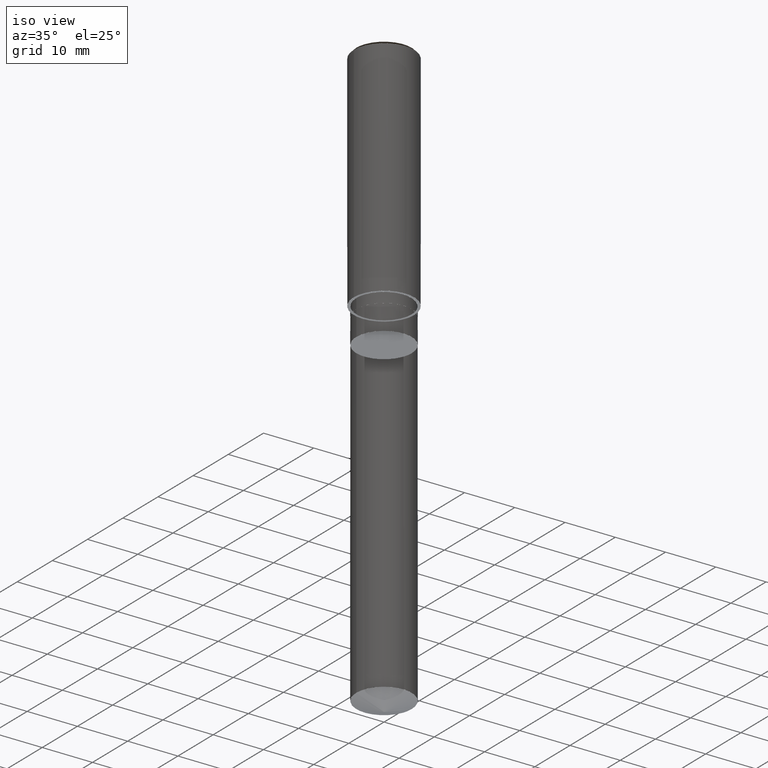
[diagram: clean part render]
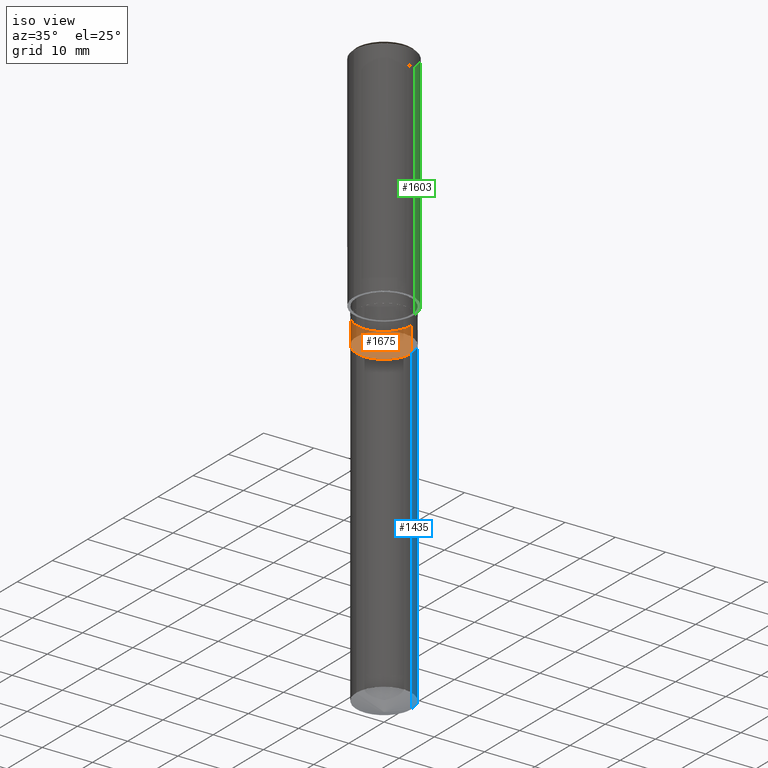
[diagram: same view with three faces highlighted in distinct colors, each labeled with its STEP entity id]
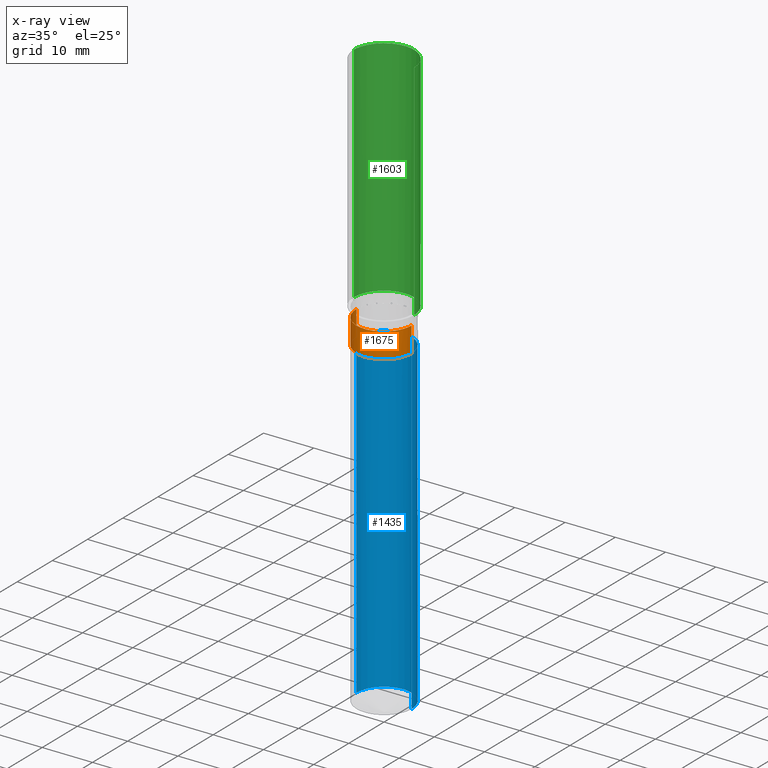
[diagram: x-ray of the same camera — body ghosted, the three highlighted faces saturated]
A machine part, iso view with three faces highlighted in distinct colors.
The next image is the same camera in x-ray (body ghosted, the three faces saturated) — at least one of them is partly hidden behind the body in this view.
Their STEP definitions:

[orange] entity #1675 — the highlighted face is a freeform B-spline surface patch.
#1342=CARTESIAN_POINT('',(5.5,0.0,-7.0));
#1346=CARTESIAN_POINT('',(-5.5,0.0,-7.0));
#1351=CARTESIAN_POINT('',(-5.5,-5.5,-7.0));
#1352=CARTESIAN_POINT('',(0.0,-5.5,-7.0));
#1353=CARTESIAN_POINT('',(5.5,-5.5,-7.0));
#1354=CARTESIAN_POINT('',(5.5,0.0,-2.0));
#1358=CARTESIAN_POINT('',(-5.5,0.0,-2.0));
#1380=CARTESIAN_POINT('',(-5.5,-5.5,-2.0));
#1381=CARTESIAN_POINT('',(0.0,-5.5,-2.0));
#1382=CARTESIAN_POINT('',(5.5,-5.5,-2.0));
#1656=(
BOUNDED_SURFACE()
B_SPLINE_SURFACE(1,2,(
(#1346,#1351,#1352,#1353,#1342),
(#1358,#1380,#1381,#1382,#1354)
), .UNSPECIFIED.,.F.,.F.,.F.)
B_SPLINE_SURFACE_WITH_KNOTS((2,2),(3,2,3),(
0.0,1.0),(
0.0,0.5,1.0), .UNSPECIFIED.)
GEOMETRIC_REPRESENTATION_ITEM()
RATIONAL_B_SPLINE_SURFACE(((1.0,0.707106781187,1.0,0.707106781187,1.0),
(1.0,0.707106781187,1.0,0.707106781187,1.0)
))
REPRESENTATION_ITEM('')
SURFACE()
);
#1657=(
BOUNDED_CURVE()
B_SPLINE_CURVE(2,(#1342,#1353,#1352,#1351,#1346),.UNSPECIFIED.,.F.,.F.)
B_SPLINE_CURVE_WITH_KNOTS((3,2,3),
(0.0,0.5,1.0),.UNSPECIFIED.)
CURVE()
GEOMETRIC_REPRESENTATION_ITEM()
RATIONAL_B_SPLINE_CURVE((1.0,0.707106781187,1.0,0.707106781187,1.0))
REPRESENTATION_ITEM('')
);
#1658=(
BOUNDED_CURVE()
B_SPLINE_CURVE(1,(#1346,#1358),.UNSPECIFIED.,.F.,.F.)
B_SPLINE_CURVE_WITH_KNOTS((2,2),
(0.0,1.0),.UNSPECIFIED.)
CURVE()
GEOMETRIC_REPRESENTATION_ITEM()
RATIONAL_B_SPLINE_CURVE((1.0,1.0))
REPRESENTATION_ITEM('')
);
#1659=(
BOUNDED_CURVE()
B_SPLINE_CURVE(2,(#1358,#1380,#1381,#1382,#1354),.UNSPECIFIED.,.F.,.F.)
B_SPLINE_CURVE_WITH_KNOTS((3,2,3),
(0.0,0.5,1.0),.UNSPECIFIED.)
CURVE()
GEOMETRIC_REPRESENTATION_ITEM()
RATIONAL_B_SPLINE_CURVE((1.0,0.707106781187,1.0,0.707106781187,1.0))
REPRESENTATION_ITEM('')
);
#1660=(
BOUNDED_CURVE()
B_SPLINE_CURVE(1,(#1354,#1342),.UNSPECIFIED.,.F.,.F.)
B_SPLINE_CURVE_WITH_KNOTS((2,2),
(0.0,1.0),.UNSPECIFIED.)
CURVE()
GEOMETRIC_REPRESENTATION_ITEM()
RATIONAL_B_SPLINE_CURVE((1.0,1.0))
REPRESENTATION_ITEM('')
);
#1661=VERTEX_POINT('',#1342);
#1662=VERTEX_POINT('',#1346);
#1663=VERTEX_POINT('',#1354);
#1664=VERTEX_POINT('',#1358);
#1665=EDGE_CURVE('',#1661,#1662,#1657,.T.);
#1666=EDGE_CURVE('',#1662,#1664,#1658,.T.);
#1667=EDGE_CURVE('',#1664,#1663,#1659,.T.);
#1668=EDGE_CURVE('',#1663,#1661,#1660,.T.);
#1669=ORIENTED_EDGE('',*,*,#1665,.T.);
#1670=ORIENTED_EDGE('',*,*,#1666,.T.);
#1671=ORIENTED_EDGE('',*,*,#1667,.T.);
#1672=ORIENTED_EDGE('',*,*,#1668,.T.);
#1673=EDGE_LOOP('',(#1669,#1670,#1671,#1672));
#1674=FACE_OUTER_BOUND('',#1673,.T.);
#1675=ADVANCED_FACE('',(#1674),#1656,.T.);

[blue] entity #1435 — the highlighted face is a freeform B-spline surface patch.
#1337=CARTESIAN_POINT('',(5.5,0.0,-70.998163711536));
#1338=CARTESIAN_POINT('',(5.5,5.5,-70.998163711536));
#1339=CARTESIAN_POINT('',(0.0,5.5,-70.998163711536));
#1340=CARTESIAN_POINT('',(-5.5,5.5,-70.998163711536));
#1341=CARTESIAN_POINT('',(-5.5,0.0,-70.998163711536));
#1342=CARTESIAN_POINT('',(5.5,0.0,-7.0));
#1343=CARTESIAN_POINT('',(5.5,5.5,-7.0));
#1344=CARTESIAN_POINT('',(0.0,5.5,-7.0));
#1345=CARTESIAN_POINT('',(-5.5,5.5,-7.0));
#1346=CARTESIAN_POINT('',(-5.5,0.0,-7.0));
#1416=(
BOUNDED_SURFACE()
B_SPLINE_SURFACE(1,2,(
(#1337,#1338,#1339,#1340,#1341),
(#1342,#1343,#1344,#1345,#1346)
), .UNSPECIFIED.,.F.,.F.,.F.)
B_SPLINE_SURFACE_WITH_KNOTS((2,2),(3,2,3),(
0.0,1.0),(
0.0,0.5,1.0), .UNSPECIFIED.)
GEOMETRIC_REPRESENTATION_ITEM()
RATIONAL_B_SPLINE_SURFACE(((1.0,0.707106781187,1.0,0.707106781187,1.0),
(1.0,0.707106781187,1.0,0.707106781187,1.0)
))
REPRESENTATION_ITEM('')
SURFACE()
);
#1417=(
BOUNDED_CURVE()
B_SPLINE_CURVE(2,(#1341,#1340,#1339,#1338,#1337),.UNSPECIFIED.,.F.,.F.)
B_SPLINE_CURVE_WITH_KNOTS((3,2,3),
(0.0,0.5,1.0),.UNSPECIFIED.)
CURVE()
GEOMETRIC_REPRESENTATION_ITEM()
RATIONAL_B_SPLINE_CURVE((1.0,0.707106781187,1.0,0.707106781187,1.0))
REPRESENTATION_ITEM('')
);
#1418=(
BOUNDED_CURVE()
B_SPLINE_CURVE(1,(#1337,#1342),.UNSPECIFIED.,.F.,.F.)
B_SPLINE_CURVE_WITH_KNOTS((2,2),
(0.0,1.0),.UNSPECIFIED.)
CURVE()
GEOMETRIC_REPRESENTATION_ITEM()
RATIONAL_B_SPLINE_CURVE((1.0,1.0))
REPRESENTATION_ITEM('')
);
#1419=(
BOUNDED_CURVE()
B_SPLINE_CURVE(2,(#1342,#1343,#1344,#1345,#1346),.UNSPECIFIED.,.F.,.F.)
B_SPLINE_CURVE_WITH_KNOTS((3,2,3),
(0.0,0.5,1.0),.UNSPECIFIED.)
CURVE()
GEOMETRIC_REPRESENTATION_ITEM()
RATIONAL_B_SPLINE_CURVE((1.0,0.707106781187,1.0,0.707106781187,1.0))
REPRESENTATION_ITEM('')
);
#1420=(
BOUNDED_CURVE()
B_SPLINE_CURVE(1,(#1346,#1341),.UNSPECIFIED.,.F.,.F.)
B_SPLINE_CURVE_WITH_KNOTS((2,2),
(0.0,1.0),.UNSPECIFIED.)
CURVE()
GEOMETRIC_REPRESENTATION_ITEM()
RATIONAL_B_SPLINE_CURVE((1.0,1.0))
REPRESENTATION_ITEM('')
);
#1421=VERTEX_POINT('',#1337);
#1422=VERTEX_POINT('',#1341);
#1423=VERTEX_POINT('',#1342);
#1424=VERTEX_POINT('',#1346);
#1425=EDGE_CURVE('',#1422,#1421,#1417,.T.);
#1426=EDGE_CURVE('',#1421,#1423,#1418,.T.);
#1427=EDGE_CURVE('',#1423,#1424,#1419,.T.);
#1428=EDGE_CURVE('',#1424,#1422,#1420,.T.);
#1429=ORIENTED_EDGE('',*,*,#1425,.T.);
#1430=ORIENTED_EDGE('',*,*,#1426,.T.);
#1431=ORIENTED_EDGE('',*,*,#1427,.T.);
#1432=ORIENTED_EDGE('',*,*,#1428,.T.);
#1433=EDGE_LOOP('',(#1429,#1430,#1431,#1432));
#1434=FACE_OUTER_BOUND('',#1433,.T.);
#1435=ADVANCED_FACE('',(#1434),#1416,.T.);

[green] entity #1603 — the highlighted face is a freeform B-spline surface patch.
#1364=CARTESIAN_POINT('',(6.0,0.0,0.0));
#1365=CARTESIAN_POINT('',(6.0,6.0,0.0));
#1366=CARTESIAN_POINT('',(0.0,6.0,0.0));
#1367=CARTESIAN_POINT('',(-6.0,6.0,0.0));
#1368=CARTESIAN_POINT('',(-6.0,0.0,0.0));
#1369=CARTESIAN_POINT('',(6.0,0.0,44.5));
#1370=CARTESIAN_POINT('',(6.0,6.0,44.5));
#1371=CARTESIAN_POINT('',(0.0,6.0,44.5));
#1372=CARTESIAN_POINT('',(-6.0,6.0,44.5));
#1373=CARTESIAN_POINT('',(-6.0,0.0,44.5));
#1584=(
BOUNDED_SURFACE()
B_SPLINE_SURFACE(1,2,(
(#1364,#1365,#1366,#1367,#1368),
(#1369,#1370,#1371,#1372,#1373)
), .UNSPECIFIED.,.F.,.F.,.F.)
B_SPLINE_SURFACE_WITH_KNOTS((2,2),(3,2,3),(
0.0,1.0),(
0.0,0.5,1.0), .UNSPECIFIED.)
GEOMETRIC_REPRESENTATION_ITEM()
RATIONAL_B_SPLINE_SURFACE(((1.0,0.707106781187,1.0,0.707106781187,1.0),
(1.0,0.707106781187,1.0,0.707106781187,1.0)
))
REPRESENTATION_ITEM('')
SURFACE()
);
#1585=(
BOUNDED_CURVE()
B_SPLINE_CURVE(2,(#1368,#1367,#1366,#1365,#1364),.UNSPECIFIED.,.F.,.F.)
B_SPLINE_CURVE_WITH_KNOTS((3,2,3),
(0.0,0.5,1.0),.UNSPECIFIED.)
CURVE()
GEOMETRIC_REPRESENTATION_ITEM()
RATIONAL_B_SPLINE_CURVE((1.0,0.707106781187,1.0,0.707106781187,1.0))
REPRESENTATION_ITEM('')
);
#1586=(
BOUNDED_CURVE()
B_SPLINE_CURVE(1,(#1364,#1369),.UNSPECIFIED.,.F.,.F.)
B_SPLINE_CURVE_WITH_KNOTS((2,2),
(0.0,1.0),.UNSPECIFIED.)
CURVE()
GEOMETRIC_REPRESENTATION_ITEM()
RATIONAL_B_SPLINE_CURVE((1.0,1.0))
REPRESENTATION_ITEM('')
);
#1587=(
BOUNDED_CURVE()
B_SPLINE_CURVE(2,(#1369,#1370,#1371,#1372,#1373),.UNSPECIFIED.,.F.,.F.)
B_SPLINE_CURVE_WITH_KNOTS((3,2,3),
(0.0,0.5,1.0),.UNSPECIFIED.)
CURVE()
GEOMETRIC_REPRESENTATION_ITEM()
RATIONAL_B_SPLINE_CURVE((1.0,0.707106781187,1.0,0.707106781187,1.0))
REPRESENTATION_ITEM('')
);
#1588=(
BOUNDED_CURVE()
B_SPLINE_CURVE(1,(#1373,#1368),.UNSPECIFIED.,.F.,.F.)
B_SPLINE_CURVE_WITH_KNOTS((2,2),
(0.0,1.0),.UNSPECIFIED.)
CURVE()
GEOMETRIC_REPRESENTATION_ITEM()
RATIONAL_B_SPLINE_CURVE((1.0,1.0))
REPRESENTATION_ITEM('')
);
#1589=VERTEX_POINT('',#1364);
#1590=VERTEX_POINT('',#1368);
#1591=VERTEX_POINT('',#1369);
#1592=VERTEX_POINT('',#1373);
#1593=EDGE_CURVE('',#1590,#1589,#1585,.T.);
#1594=EDGE_CURVE('',#1589,#1591,#1586,.T.);
#1595=EDGE_CURVE('',#1591,#1592,#1587,.T.);
#1596=EDGE_CURVE('',#1592,#1590,#1588,.T.);
#1597=ORIENTED_EDGE('',*,*,#1593,.T.);
#1598=ORIENTED_EDGE('',*,*,#1594,.T.);
#1599=ORIENTED_EDGE('',*,*,#1595,.T.);
#1600=ORIENTED_EDGE('',*,*,#1596,.T.);
#1601=EDGE_LOOP('',(#1597,#1598,#1599,#1600));
#1602=FACE_OUTER_BOUND('',#1601,.T.);
#1603=ADVANCED_FACE('',(#1602),#1584,.T.);